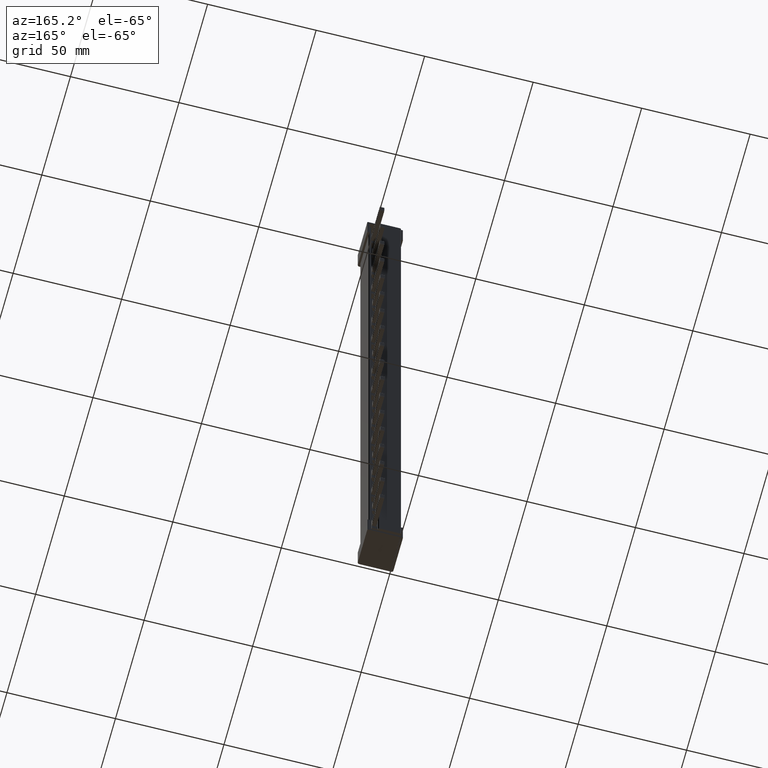
[diagram: clean part render]
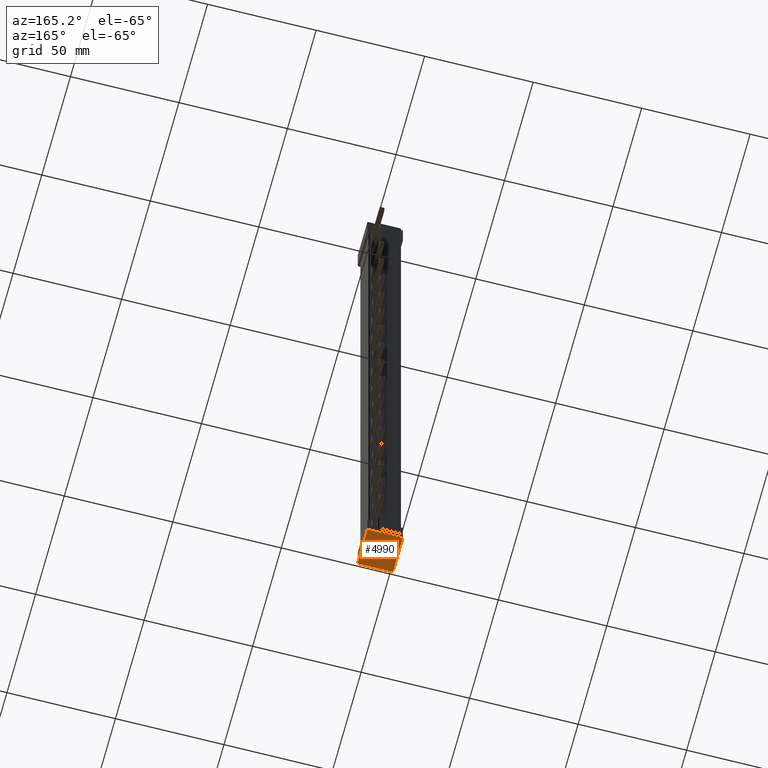
[diagram: same view with one face highlighted and labeled with its STEP entity id]
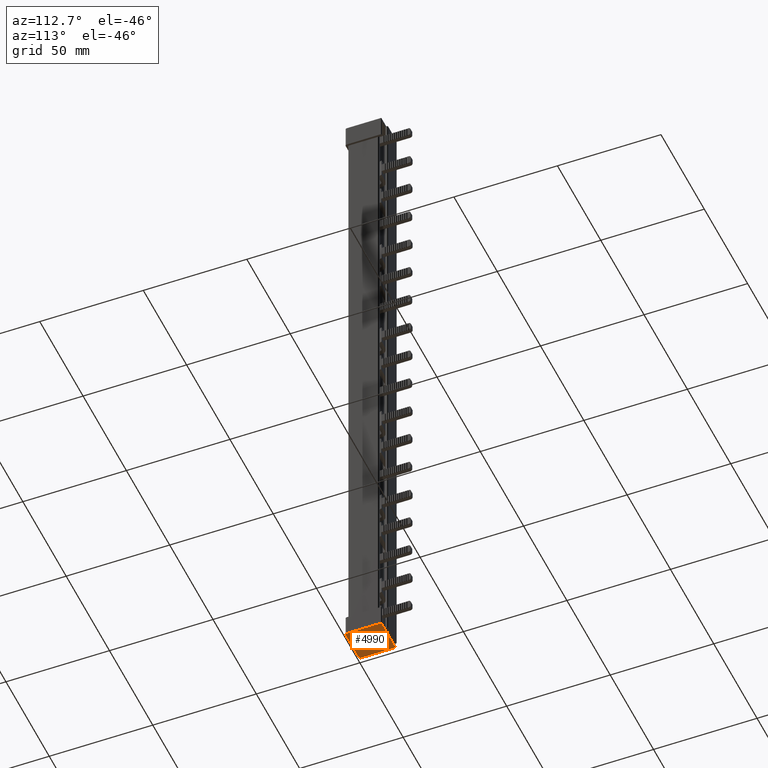
[diagram: same view with one face highlighted and labeled with its STEP entity id]
A machine part, auxiliary view. The second image highlights one B-rep face of the part: STEP entity #4990.
A second angle (auxiliary view) of the same face is appended — the face is thin or edge-on in the first view.
In plain terms, the highlighted planar face has unit normal (-0, 0, 1).
Its self-contained STEP definition (entity closure, byte-faithful):
#1064 = EDGE_CURVE ( 'NONE', #11812, #11810, #1757, .T. ) ;
#1065 = EDGE_CURVE ( 'NONE', #11844, #11835, #24244, .T. ) ;
#1085 = EDGE_CURVE ( 'NONE', #11810, #11820, #24315, .T. ) ;
#1086 = EDGE_CURVE ( 'NONE', #11820, #11815, #1807, .T. ) ;
#1088 = EDGE_CURVE ( 'NONE', #11844, #11840, #1867, .T. ) ;
#1090 = EDGE_CURVE ( 'NONE', #11833, #11812, #24320, .T. ) ;
#1091 = EDGE_CURVE ( 'NONE', #11815, #11840, #24272, .T. ) ;
#1134 = EDGE_CURVE ( 'NONE', #11833, #11835, #1986, .T. ) ;
#1757 = LINE ( 'NONE', #1786, #24198 ) ;
#1760 = CARTESIAN_POINT ( 'NONE',  ( -0.9839999998907443800, -0.2500000000002777800, -105.0000000000590900 ) ) ;
#1762 = DIRECTION ( 'NONE',  ( -4.965472477636011600E-013, -0.0000000000000000000, 1.000000000000000000 ) ) ;
#1783 = DIRECTION ( 'NONE',  ( -1.000000000000000000, 0.0000000000000000000, -4.996003610812828800E-013 ) ) ;
#1786 = CARTESIAN_POINT ( 'NONE',  ( 14.66600000010918100, -11.04623440810184900, -105.0000000000513000 ) ) ;
#1792 = DIRECTION ( 'NONE',  ( 0.0000000000000000000, 1.000000000000000000, 0.0000000000000000000 ) ) ;
#1800 = CARTESIAN_POINT ( 'NONE',  ( 14.46600000010933800, 16.29999999999973100, -105.0000000000514000 ) ) ;
#1807 = LINE ( 'NONE', #1810, #24299 ) ;
#1810 = CARTESIAN_POINT ( 'NONE',  ( 6.466000000104061800, 16.49999999999970900, -105.0000000000514100 ) ) ;
#1814 = DIRECTION ( 'NONE',  ( -1.000000000000000000, 0.0000000000000000000, -4.857225732737280300E-013 ) ) ;
#1815 = DIRECTION ( 'NONE',  ( -1.000000000000000000, -0.0000000000000000000, 0.0000000000000000000 ) ) ;
#1837 = DIRECTION ( 'NONE',  ( -4.965472477636011600E-013, -0.0000000000000000000, 1.000000000000000000 ) ) ;
#1844 = DIRECTION ( 'NONE',  ( -1.000000000000000000, 8.673617379884027600E-016, -4.996003610813200400E-013 ) ) ;
#1846 = CARTESIAN_POINT ( 'NONE',  ( -1.533999999890739200, 16.29999999999973100, -105.0000000000553800 ) ) ;
#1847 = CARTESIAN_POINT ( 'NONE',  ( -1.733999999890744900, -11.04623440810184900, -105.0000000000594600 ) ) ;
#1855 = DIRECTION ( 'NONE',  ( 0.0000000000000000000, 1.000000000000000000, 0.0000000000000000000 ) ) ;
#1867 = LINE ( 'NONE', #1847, #24317 ) ;
#1875 = DIRECTION ( 'NONE',  ( -4.965472477636011600E-013, -0.0000000000000000000, 1.000000000000000000 ) ) ;
#1877 = CARTESIAN_POINT ( 'NONE',  ( 13.91600000010917500, -0.2500000000003888000, -105.0000000000516600 ) ) ;
#1878 = DIRECTION ( 'NONE',  ( -1.000000000000000000, 0.0000000000000000000, -4.857225732735257800E-013 ) ) ;
#1883 = DIRECTION ( 'NONE',  ( -4.965472477636011600E-013, -0.0000000000000000000, 1.000000000000000000 ) ) ;
#1986 = LINE ( 'NONE', #2024, #24326 ) ;
#2017 = DIRECTION ( 'NONE',  ( -1.000000000000000000, -0.0000000000000000000, 0.0000000000000000000 ) ) ;
#2024 = CARTESIAN_POINT ( 'NONE',  ( 6.466000000104061800, -1.000000000000389500, -105.0000000000516600 ) ) ;
#3090 = AXIS2_PLACEMENT_3D ( 'NONE', #32880, #32892, #32886 ) ;
#4990 = ADVANCED_FACE ( 'NONE', ( #32872 ), #32851, .F. ) ;
#10440 = ORIENTED_EDGE ( 'NONE', *, *, #1064, .F. ) ;
#10441 = ORIENTED_EDGE ( 'NONE', *, *, #1085, .F. ) ;
#10443 = ORIENTED_EDGE ( 'NONE', *, *, #1088, .T. ) ;
#10454 = ORIENTED_EDGE ( 'NONE', *, *, #1065, .F. ) ;
#10496 = ORIENTED_EDGE ( 'NONE', *, *, #1086, .F. ) ;
#10507 = ORIENTED_EDGE ( 'NONE', *, *, #1134, .T. ) ;
#10529 = ORIENTED_EDGE ( 'NONE', *, *, #1090, .F. ) ;
#10556 = ORIENTED_EDGE ( 'NONE', *, *, #1091, .F. ) ;
#11810 = VERTEX_POINT ( 'NONE', #16075 ) ;
#11812 = VERTEX_POINT ( 'NONE', #16081 ) ;
#11815 = VERTEX_POINT ( 'NONE', #16155 ) ;
#11820 = VERTEX_POINT ( 'NONE', #16213 ) ;
#11833 = VERTEX_POINT ( 'NONE', #16138 ) ;
#11835 = VERTEX_POINT ( 'NONE', #16181 ) ;
#11840 = VERTEX_POINT ( 'NONE', #16144 ) ;
#11844 = VERTEX_POINT ( 'NONE', #16151 ) ;
#16075 = CARTESIAN_POINT ( 'NONE',  ( 14.66600000010918100, 16.29999999999973100, -105.0000000000513000 ) ) ;
#16081 = CARTESIAN_POINT ( 'NONE',  ( 14.66600000010918100, -0.2500000000003888000, -105.0000000000513000 ) ) ;
#16138 = CARTESIAN_POINT ( 'NONE',  ( 13.91600000010659200, -1.000000000000389500, -105.0000000000516600 ) ) ;
#16144 = CARTESIAN_POINT ( 'NONE',  ( -1.733999999890744900, 16.29999999999973100, -105.0000000000574700 ) ) ;
#16151 = CARTESIAN_POINT ( 'NONE',  ( -1.733999999890744900, -0.2500000000002777800, -105.0000000000594600 ) ) ;
#16155 = CARTESIAN_POINT ( 'NONE',  ( -1.533999999890738300, 16.49999999999970900, -105.0000000000534000 ) ) ;
#16181 = CARTESIAN_POINT ( 'NONE',  ( -0.9839999998907428300, -1.000000000000389500, -105.0000000000553800 ) ) ;
#16213 = CARTESIAN_POINT ( 'NONE',  ( 14.46600000010675500, 16.49999999999970900, -105.0000000000514100 ) ) ;
#24198 = VECTOR ( 'NONE', #1792, 1000.000000000000000 ) ;
#24244 = CIRCLE ( 'NONE', #24245, 0.7500000000000564000 ) ;
#24245 = AXIS2_PLACEMENT_3D ( 'NONE', #1760, #1762, #1783 ) ;
#24272 = CIRCLE ( 'NONE', #24279, 0.1999999999999918500 ) ;
#24279 = AXIS2_PLACEMENT_3D ( 'NONE', #1846, #1875, #1878 ) ;
#24299 = VECTOR ( 'NONE', #1815, 1000.000000000000000 ) ;
#24309 = AXIS2_PLACEMENT_3D ( 'NONE', #1800, #1837, #1814 ) ;
#24312 = AXIS2_PLACEMENT_3D ( 'NONE', #1877, #1883, #1844 ) ;
#24315 = CIRCLE ( 'NONE', #24309, 0.1999999999999085800 ) ;
#24317 = VECTOR ( 'NONE', #1855, 1000.000000000000000 ) ;
#24320 = CIRCLE ( 'NONE', #24312, 0.7500000000000006700 ) ;
#24326 = VECTOR ( 'NONE', #2017, 1000.000000000000000 ) ;
#28492 = EDGE_LOOP ( 'NONE', ( #10440, #10529, #10507, #10454, #10443, #10556, #10496, #10441 ) ) ;
#32851 = PLANE ( 'NONE',  #3090 ) ;
#32872 = FACE_OUTER_BOUND ( 'NONE', #28492, .T. ) ;
#32880 = CARTESIAN_POINT ( 'NONE',  ( 6.466000000109233700, -11.04623440810184900, -105.0000000000553800 ) ) ;
#32886 = DIRECTION ( 'NONE',  ( 1.000000000000000000, 0.0000000000000000000, 4.965472477636011600E-013 ) ) ;
#32892 = DIRECTION ( 'NONE',  ( -4.965472477636011600E-013, 0.0000000000000000000, 1.000000000000000000 ) ) ;